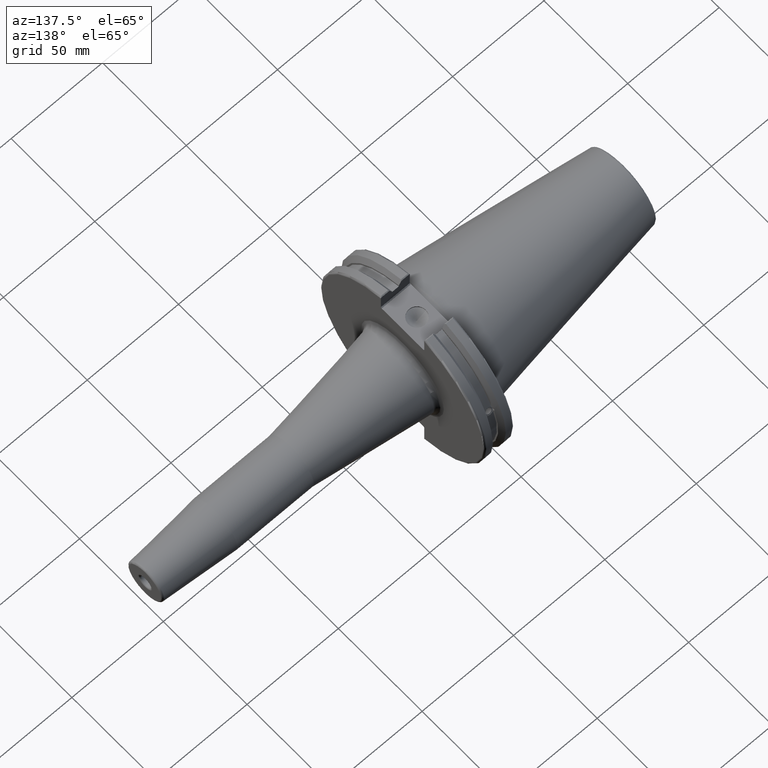
[diagram: clean part render]
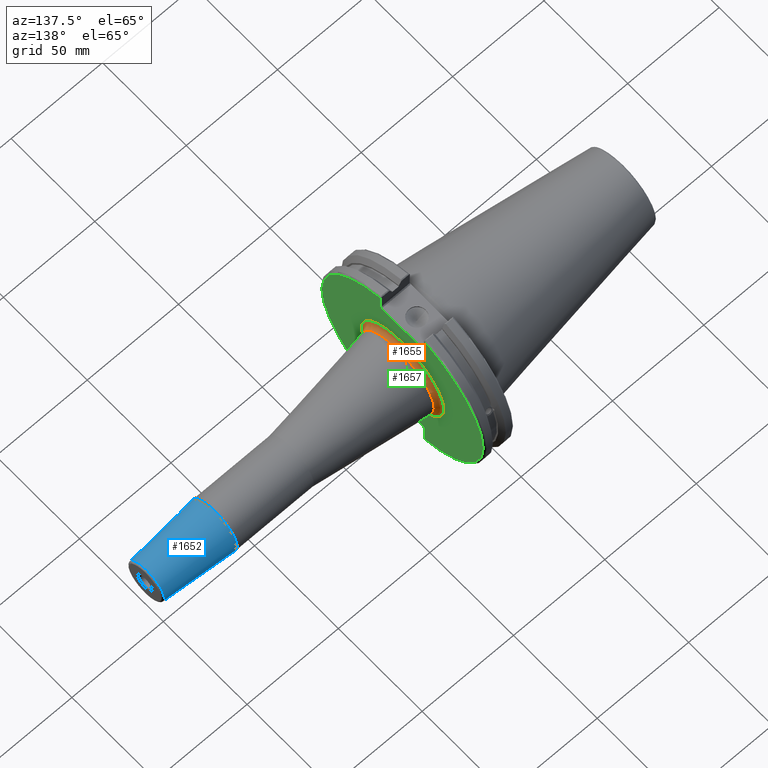
[diagram: same view with three faces highlighted in distinct colors, each labeled with its STEP entity id]
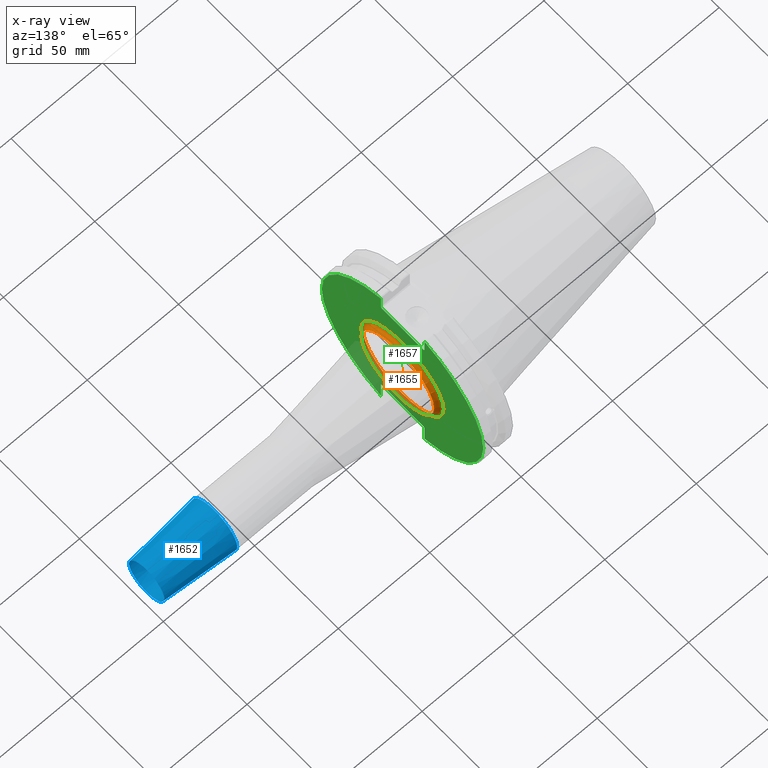
[diagram: x-ray of the same camera — body ghosted, the three highlighted faces saturated]
A machine part, auxiliary view with three faces highlighted in distinct colors.
The next image is the same camera in x-ray (body ghosted, the three faces saturated) — at least one of them is partly hidden behind the body in this view.
Their STEP definitions:

[orange] entity #1655 — the highlighted toroidal blend (fillet) surface has major radius 24.6738 mm and minor (blend) radius 3 mm.
#366=FACE_OUTER_BOUND('',#456,.T.);
#456=EDGE_LOOP('',(#1144,#1145,#1146,#1147,#1148,#1149,#1150));
#572=CIRCLE('',#1778,21.7030198823347);
#573=CIRCLE('',#1779,3.);
#574=CIRCLE('',#1780,24.6738240885594);
#575=CIRCLE('',#1781,24.6738240885594);
#576=CIRCLE('',#1782,21.7030198823347);
#577=CIRCLE('',#1783,21.7030198823347);
#681=VERTEX_POINT('',#2495);
#682=VERTEX_POINT('',#2496);
#683=VERTEX_POINT('',#2498);
#684=VERTEX_POINT('',#2500);
#685=VERTEX_POINT('',#2503);
#870=EDGE_CURVE('',#681,#682,#572,.T.);
#871=EDGE_CURVE('',#682,#683,#573,.T.);
#872=EDGE_CURVE('',#683,#684,#574,.T.);
#873=EDGE_CURVE('',#684,#683,#575,.T.);
#874=EDGE_CURVE('',#682,#685,#576,.T.);
#875=EDGE_CURVE('',#685,#681,#577,.T.);
#1144=ORIENTED_EDGE('',*,*,#870,.T.);
#1145=ORIENTED_EDGE('',*,*,#871,.T.);
#1146=ORIENTED_EDGE('',*,*,#872,.T.);
#1147=ORIENTED_EDGE('',*,*,#873,.T.);
#1148=ORIENTED_EDGE('',*,*,#871,.F.);
#1149=ORIENTED_EDGE('',*,*,#874,.T.);
#1150=ORIENTED_EDGE('',*,*,#875,.T.);
#1643=TOROIDAL_SURFACE('',#1777,24.6738240885594,3.);
#1655=ADVANCED_FACE('',(#366),#1643,.F.);
#1777=AXIS2_PLACEMENT_3D('',#2494,#2001,#2002);
#1778=AXIS2_PLACEMENT_3D('',#2497,#2003,#2004);
#1779=AXIS2_PLACEMENT_3D('',#2499,#2005,#2006);
#1780=AXIS2_PLACEMENT_3D('',#2501,#2007,#2008);
#1781=AXIS2_PLACEMENT_3D('',#2502,#2009,#2010);
#1782=AXIS2_PLACEMENT_3D('',#2504,#2011,#2012);
#1783=AXIS2_PLACEMENT_3D('',#2505,#2013,#2014);
#2001=DIRECTION('center_axis',(-1.,0.,0.));
#2002=DIRECTION('ref_axis',(0.,0.,1.));
#2003=DIRECTION('center_axis',(-1.,0.,0.));
#2004=DIRECTION('ref_axis',(0.,-1.,-1.22464679914735E-16));
#2005=DIRECTION('center_axis',(0.,-1.,1.22464679914735E-16));
#2006=DIRECTION('ref_axis',(0.,-1.22464679914735E-16,-1.));
#2007=DIRECTION('center_axis',(1.,0.,0.));
#2008=DIRECTION('ref_axis',(0.,-1.,-1.22464679914735E-16));
#2009=DIRECTION('center_axis',(1.,0.,0.));
#2010=DIRECTION('ref_axis',(0.,-1.,-1.22464679914735E-16));
#2011=DIRECTION('center_axis',(-1.,0.,0.));
#2012=DIRECTION('ref_axis',(0.,-1.,-1.22464679914735E-16));
#2013=DIRECTION('center_axis',(-1.,0.,0.));
#2014=DIRECTION('ref_axis',(0.,-1.,-1.22464679914735E-16));
#2494=CARTESIAN_POINT('Origin',(22.05,0.,0.));
#2495=CARTESIAN_POINT('',(21.6324806971198,21.7030198823347,4.93038065763132E-31));
#2496=CARTESIAN_POINT('',(21.6324806971198,-2.65785338307326E-15,-21.7030198823347));
#2497=CARTESIAN_POINT('Origin',(21.6324806971198,0.,0.));
#2498=CARTESIAN_POINT('',(19.05,-3.02167196927792E-15,-24.6738240885594));
#2499=CARTESIAN_POINT('Origin',(22.05,-3.02167196927792E-15,-24.6738240885594));
#2500=CARTESIAN_POINT('',(19.05,24.6738240885594,6.04334393855584E-15));
#2501=CARTESIAN_POINT('Origin',(19.05,0.,0.));
#2502=CARTESIAN_POINT('Origin',(19.05,0.,0.));
#2503=CARTESIAN_POINT('',(21.6324806971198,-21.7030198823347,-2.65785338307326E-15));
#2504=CARTESIAN_POINT('Origin',(21.6324806971198,0.,0.));
#2505=CARTESIAN_POINT('Origin',(21.6324806971198,0.,0.));

[blue] entity #1652 — the highlighted conical surface has half-angle 4.5 deg.
#99=LINE('',#2480,#194);
#194=VECTOR('',#1983,12.);
#289=CONICAL_SURFACE('',#1768,12.,0.0785398163397447);
#363=FACE_OUTER_BOUND('',#453,.T.);
#453=EDGE_LOOP('',(#1127,#1128,#1129,#1130,#1131,#1132,#1133));
#561=CIRCLE('',#1762,10.5725268420749);
#562=CIRCLE('',#1763,10.5725268420749);
#563=CIRCLE('',#1764,10.5725268420749);
#566=CIRCLE('',#1769,13.5);
#567=CIRCLE('',#1770,13.5);
#672=VERTEX_POINT('',#2467);
#673=VERTEX_POINT('',#2469);
#674=VERTEX_POINT('',#2471);
#676=VERTEX_POINT('',#2479);
#677=VERTEX_POINT('',#2481);
#857=EDGE_CURVE('',#672,#673,#561,.T.);
#858=EDGE_CURVE('',#673,#674,#562,.T.);
#859=EDGE_CURVE('',#674,#672,#563,.T.);
#862=EDGE_CURVE('',#673,#676,#99,.T.);
#863=EDGE_CURVE('',#676,#677,#566,.T.);
#864=EDGE_CURVE('',#677,#676,#567,.T.);
#1127=ORIENTED_EDGE('',*,*,#859,.F.);
#1128=ORIENTED_EDGE('',*,*,#858,.F.);
#1129=ORIENTED_EDGE('',*,*,#862,.T.);
#1130=ORIENTED_EDGE('',*,*,#863,.T.);
#1131=ORIENTED_EDGE('',*,*,#864,.T.);
#1132=ORIENTED_EDGE('',*,*,#862,.F.);
#1133=ORIENTED_EDGE('',*,*,#857,.F.);
#1652=ADVANCED_FACE('',(#363),#289,.T.);
#1762=AXIS2_PLACEMENT_3D('',#2470,#1969,#1970);
#1763=AXIS2_PLACEMENT_3D('',#2472,#1971,#1972);
#1764=AXIS2_PLACEMENT_3D('',#2473,#1973,#1974);
#1768=AXIS2_PLACEMENT_3D('',#2478,#1981,#1982);
#1769=AXIS2_PLACEMENT_3D('',#2482,#1984,#1985);
#1770=AXIS2_PLACEMENT_3D('',#2483,#1986,#1987);
#1969=DIRECTION('center_axis',(1.,0.,0.));
#1970=DIRECTION('ref_axis',(0.,-1.,3.06161699786838E-17));
#1971=DIRECTION('center_axis',(1.,0.,0.));
#1972=DIRECTION('ref_axis',(0.,-1.,3.06161699786838E-17));
#1973=DIRECTION('center_axis',(1.,0.,0.));
#1974=DIRECTION('ref_axis',(0.,-1.,3.06161699786838E-17));
#1981=DIRECTION('center_axis',(-1.,0.,0.));
#1982=DIRECTION('ref_axis',(0.,1.,0.));
#1983=DIRECTION('',(-0.996917333733128,-0.0784590957278448,-9.60846804471009E-18));
#1984=DIRECTION('center_axis',(1.,0.,0.));
#1985=DIRECTION('ref_axis',(0.,0.,-1.));
#1986=DIRECTION('center_axis',(1.,0.,0.));
#1987=DIRECTION('ref_axis',(0.,0.,-1.));
#2467=CARTESIAN_POINT('',(159.078459095728,-1.29476111560465E-15,10.5725268420749));
#2469=CARTESIAN_POINT('',(159.078459095728,-10.5725268420749,-1.29476111560465E-15));
#2470=CARTESIAN_POINT('Origin',(159.078459095728,0.,-1.61845139450582E-15));
#2471=CARTESIAN_POINT('',(159.078459095728,10.5725268420749,-6.47380557802327E-16));
#2472=CARTESIAN_POINT('Origin',(159.078459095728,0.,-1.61845139450582E-15));
#2473=CARTESIAN_POINT('Origin',(159.078459095728,0.,-1.61845139450582E-15));
#2478=CARTESIAN_POINT('Origin',(140.940692895738,0.,0.));
#2479=CARTESIAN_POINT('',(121.881385791476,-13.5,-1.65327317884893E-15));
#2480=CARTESIAN_POINT('',(140.940692895738,-12.,-1.46957615897682E-15));
#2481=CARTESIAN_POINT('',(121.881385791476,13.5,0.));
#2482=CARTESIAN_POINT('Origin',(121.881385791476,0.,0.));
#2483=CARTESIAN_POINT('Origin',(121.881385791476,0.,0.));

[green] entity #1657 — the highlighted planar face has unit normal (1, 0, 0).
#102=LINE('',#2517,#197);
#103=LINE('',#2519,#198);
#104=LINE('',#2521,#199);
#105=LINE('',#2523,#200);
#106=LINE('',#2525,#201);
#107=LINE('',#2529,#202);
#108=LINE('',#2531,#203);
#109=LINE('',#2533,#204);
#110=LINE('',#2535,#205);
#111=LINE('',#2536,#206);
#197=VECTOR('',#2026,10.);
#198=VECTOR('',#2027,10.);
#199=VECTOR('',#2028,10.);
#200=VECTOR('',#2029,10.);
#201=VECTOR('',#2030,10.);
#202=VECTOR('',#2033,10.);
#203=VECTOR('',#2034,10.);
#204=VECTOR('',#2035,10.);
#205=VECTOR('',#2036,10.);
#206=VECTOR('',#2037,10.);
#305=FACE_BOUND('',#459,.T.);
#325=PLANE('',#1787);
#368=FACE_OUTER_BOUND('',#458,.T.);
#458=EDGE_LOOP('',(#1158,#1159,#1160,#1161,#1162,#1163,#1164,#1165,#1166,
#1167,#1168,#1169));
#459=EDGE_LOOP('',(#1170,#1171));
#574=CIRCLE('',#1780,24.6738240885594);
#575=CIRCLE('',#1781,24.6738240885594);
#580=CIRCLE('',#1788,48.2125);
#581=CIRCLE('',#1789,48.2125);
#683=VERTEX_POINT('',#2498);
#684=VERTEX_POINT('',#2500);
#688=VERTEX_POINT('',#2513);
#689=VERTEX_POINT('',#2514);
#690=VERTEX_POINT('',#2516);
#691=VERTEX_POINT('',#2518);
#692=VERTEX_POINT('',#2520);
#693=VERTEX_POINT('',#2522);
#694=VERTEX_POINT('',#2524);
#695=VERTEX_POINT('',#2526);
#696=VERTEX_POINT('',#2528);
#697=VERTEX_POINT('',#2530);
#698=VERTEX_POINT('',#2532);
#699=VERTEX_POINT('',#2534);
#872=EDGE_CURVE('',#683,#684,#574,.T.);
#873=EDGE_CURVE('',#684,#683,#575,.T.);
#879=EDGE_CURVE('',#688,#689,#580,.T.);
#880=EDGE_CURVE('',#688,#690,#102,.T.);
#881=EDGE_CURVE('',#691,#690,#103,.T.);
#882=EDGE_CURVE('',#691,#692,#104,.T.);
#883=EDGE_CURVE('',#693,#692,#105,.T.);
#884=EDGE_CURVE('',#693,#694,#106,.T.);
#885=EDGE_CURVE('',#695,#694,#581,.T.);
#886=EDGE_CURVE('',#695,#696,#107,.T.);
#887=EDGE_CURVE('',#697,#696,#108,.T.);
#888=EDGE_CURVE('',#697,#698,#109,.T.);
#889=EDGE_CURVE('',#699,#698,#110,.T.);
#890=EDGE_CURVE('',#699,#689,#111,.T.);
#1158=ORIENTED_EDGE('',*,*,#879,.F.);
#1159=ORIENTED_EDGE('',*,*,#880,.T.);
#1160=ORIENTED_EDGE('',*,*,#881,.F.);
#1161=ORIENTED_EDGE('',*,*,#882,.T.);
#1162=ORIENTED_EDGE('',*,*,#883,.F.);
#1163=ORIENTED_EDGE('',*,*,#884,.T.);
#1164=ORIENTED_EDGE('',*,*,#885,.F.);
#1165=ORIENTED_EDGE('',*,*,#886,.T.);
#1166=ORIENTED_EDGE('',*,*,#887,.F.);
#1167=ORIENTED_EDGE('',*,*,#888,.T.);
#1168=ORIENTED_EDGE('',*,*,#889,.F.);
#1169=ORIENTED_EDGE('',*,*,#890,.T.);
#1170=ORIENTED_EDGE('',*,*,#873,.F.);
#1171=ORIENTED_EDGE('',*,*,#872,.F.);
#1657=ADVANCED_FACE('',(#368,#305),#325,.T.);
#1780=AXIS2_PLACEMENT_3D('',#2501,#2007,#2008);
#1781=AXIS2_PLACEMENT_3D('',#2502,#2009,#2010);
#1787=AXIS2_PLACEMENT_3D('',#2512,#2022,#2023);
#1788=AXIS2_PLACEMENT_3D('',#2515,#2024,#2025);
#1789=AXIS2_PLACEMENT_3D('',#2527,#2031,#2032);
#2007=DIRECTION('center_axis',(1.,0.,0.));
#2008=DIRECTION('ref_axis',(0.,-1.,-1.22464679914735E-16));
#2009=DIRECTION('center_axis',(1.,0.,0.));
#2010=DIRECTION('ref_axis',(0.,-1.,-1.22464679914735E-16));
#2022=DIRECTION('center_axis',(1.,0.,0.));
#2023=DIRECTION('ref_axis',(0.,0.,-1.));
#2024=DIRECTION('center_axis',(-1.,0.,0.));
#2025=DIRECTION('ref_axis',(0.,1.,-6.12323399573677E-17));
#2026=DIRECTION('',(0.,0.,-1.));
#2027=DIRECTION('',(0.,0.707106781186549,0.707106781186546));
#2028=DIRECTION('',(0.,-1.,0.));
#2029=DIRECTION('',(0.,0.707106781186549,-0.707106781186546));
#2030=DIRECTION('',(0.,0.,1.));
#2031=DIRECTION('center_axis',(-1.,0.,0.));
#2032=DIRECTION('ref_axis',(0.,-1.,1.60812264967664E-16));
#2033=DIRECTION('',(0.,0.,1.));
#2034=DIRECTION('',(0.,-0.707106781186549,-0.707106781186546));
#2035=DIRECTION('',(0.,1.,0.));
#2036=DIRECTION('',(0.,-0.707106781186549,0.707106781186546));
#2037=DIRECTION('',(0.,0.,-1.));
#2498=CARTESIAN_POINT('',(19.05,-3.02167196927792E-15,-24.6738240885594));
#2500=CARTESIAN_POINT('',(19.05,24.6738240885594,6.04334393855584E-15));
#2501=CARTESIAN_POINT('Origin',(19.05,0.,0.));
#2502=CARTESIAN_POINT('Origin',(19.05,0.,0.));
#2512=CARTESIAN_POINT('Origin',(19.05,0.,0.));
#2513=CARTESIAN_POINT('',(19.05,12.95,46.4407434937254));
#2514=CARTESIAN_POINT('',(19.05,12.95,-46.4407434937254));
#2515=CARTESIAN_POINT('Origin',(19.05,0.,0.));
#2516=CARTESIAN_POINT('',(19.05,12.95,38.219));
#2517=CARTESIAN_POINT('',(19.05,12.95,18.8595));
#2518=CARTESIAN_POINT('',(19.05,12.45,37.719));
#2519=CARTESIAN_POINT('',(19.05,0.0327499999999836,25.30175));
#2520=CARTESIAN_POINT('',(19.05,-12.45,37.719));
#2521=CARTESIAN_POINT('',(19.05,0.,37.719));
#2522=CARTESIAN_POINT('',(19.05,-12.95,38.219));
#2523=CARTESIAN_POINT('',(19.05,-0.0327499999999817,25.30175));
#2524=CARTESIAN_POINT('',(19.05,-12.95,46.4407434937254));
#2525=CARTESIAN_POINT('',(19.05,-12.95,18.8595));
#2526=CARTESIAN_POINT('',(19.05,-12.95,-46.4407434937254));
#2527=CARTESIAN_POINT('Origin',(19.05,0.,0.));
#2528=CARTESIAN_POINT('',(19.05,-12.95,-35.806));
#2529=CARTESIAN_POINT('',(19.05,-12.95,-17.653));
#2530=CARTESIAN_POINT('',(19.05,-12.45,-35.306));
#2531=CARTESIAN_POINT('',(19.05,-0.635999999999989,-23.492));
#2532=CARTESIAN_POINT('',(19.05,12.45,-35.306));
#2533=CARTESIAN_POINT('',(19.05,-3.33066907387547E-15,-35.306));
#2534=CARTESIAN_POINT('',(19.05,12.95,-35.806));
#2535=CARTESIAN_POINT('',(19.05,0.635999999999982,-23.492));
#2536=CARTESIAN_POINT('',(19.05,12.95,-17.653));